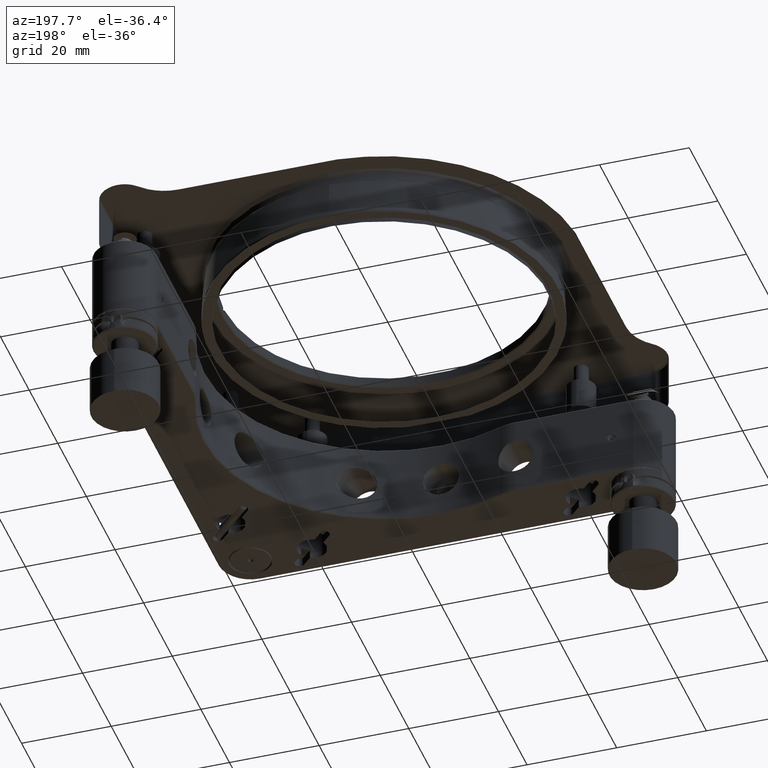
[diagram: clean part render]
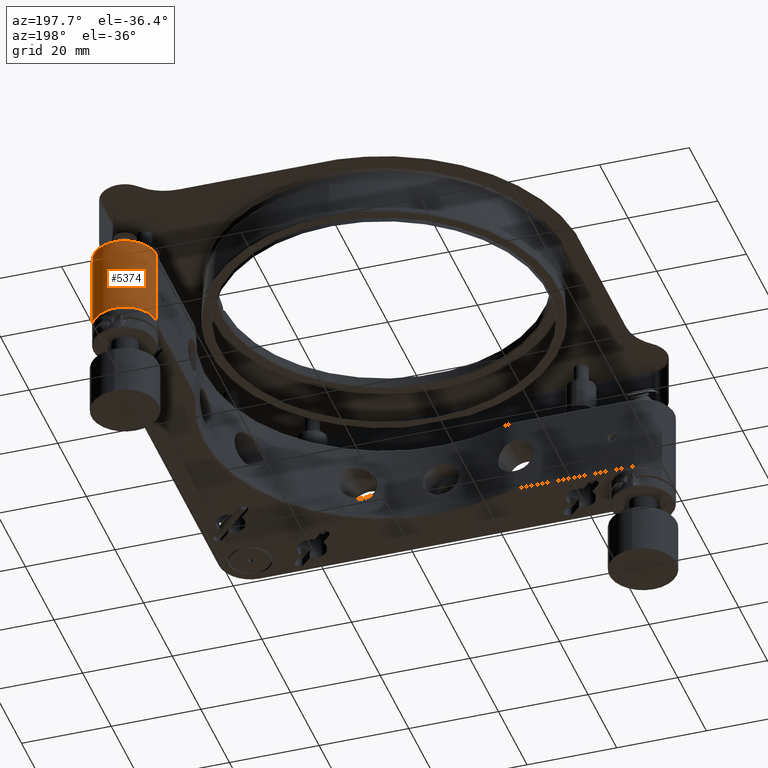
[diagram: same view with one face highlighted and labeled with its STEP entity id]
A machine part, auxiliary view. The second image highlights one B-rep face of the part: STEP entity #5374.
In plain terms, the highlighted cylindrical surface (edge-blend (fillet) strip) has radius 7 mm, axis along (0, 0, 1).
Its self-contained STEP definition (entity closure, byte-faithful):
#146 = CIRCLE ( 'NONE', #3163, 6.999999999972090770 ) ;
#2188 = DIRECTION ( 'NONE',  ( 0.000000000000000000, 0.000000000000000000, -1.000000000000000000 ) ) ;
#2988 = VECTOR ( 'NONE', #6459, 1000.000000000000000 ) ;
#3163 = AXIS2_PLACEMENT_3D ( 'NONE', #10404, #10323, #11689 ) ;
#3243 = CARTESIAN_POINT ( 'NONE',  ( 43.80000000000001137, 43.80000000000000426, 9.000000000000001776 ) ) ;
#3410 = DIRECTION ( 'NONE',  ( 0.000000000000000000, 0.000000000000000000, 1.000000000000000000 ) ) ;
#3658 = AXIS2_PLACEMENT_3D ( 'NONE', #3243, #3410, #10923 ) ;
#4374 = ORIENTED_EDGE ( 'NONE', *, *, #7971, .T. ) ;
#5374 = ADVANCED_FACE ( 'NONE', ( #11008 ), #12288, .T. ) ;
#5803 = CARTESIAN_POINT ( 'NONE',  ( 43.80000000000001137, 43.80000000000000426, -8.750000000000014211 ) ) ;
#6018 = VERTEX_POINT ( 'NONE', #13454 ) ;
#6459 = DIRECTION ( 'NONE',  ( -0.000000000000000000, -0.000000000000000000, 1.000000000000000000 ) ) ;
#7033 = CARTESIAN_POINT ( 'NONE',  ( 36.80000000000698179, 43.80000000000000426, 8.750000000005115908 ) ) ;
#7166 = VERTEX_POINT ( 'NONE', #7033 ) ;
#7804 = EDGE_CURVE ( 'NONE', #6018, #7166, #146, .T. ) ;
#7971 = EDGE_CURVE ( 'NONE', #6018, #10408, #11244, .T. ) ;
#7996 = CARTESIAN_POINT ( 'NONE',  ( 36.80000000000000426, 43.80000000000000426, -9.000000000000001776 ) ) ;
#8281 = VERTEX_POINT ( 'NONE', #11173 ) ;
#9198 = CIRCLE ( 'NONE', #10568, 6.999999999999999112 ) ;
#9737 = DIRECTION ( 'NONE',  ( 0.000000000000000000, 0.000000000000000000, 1.000000000000000000 ) ) ;
#10119 = EDGE_LOOP ( 'NONE', ( #16225, #4374, #12991, #11634 ) ) ;
#10323 = DIRECTION ( 'NONE',  ( -0.000000000000000000, -0.000000000000000000, 1.000000000000000000 ) ) ;
#10404 = CARTESIAN_POINT ( 'NONE',  ( 43.80000000000001137, 43.80000000000000426, 8.750000000020463631 ) ) ;
#10408 = VERTEX_POINT ( 'NONE', #13930 ) ;
#10568 = AXIS2_PLACEMENT_3D ( 'NONE', #5803, #9737, #13663 ) ;
#10923 = DIRECTION ( 'NONE',  ( 1.000000000000000000, 0.000000000000000000, 0.000000000000000000 ) ) ;
#11008 = FACE_OUTER_BOUND ( 'NONE', #10119, .T. ) ;
#11173 = CARTESIAN_POINT ( 'NONE',  ( 36.80000000000000426, 43.80000000000000426, -8.750000000000014211 ) ) ;
#11244 = LINE ( 'NONE', #12691, #14065 ) ;
#11634 = ORIENTED_EDGE ( 'NONE', *, *, #16261, .T. ) ;
#11672 = EDGE_CURVE ( 'NONE', #10408, #8281, #9198, .T. ) ;
#11689 = DIRECTION ( 'NONE',  ( -1.000000000000000000, 0.000000000000000000, 0.000000000000000000 ) ) ;
#11845 = LINE ( 'NONE', #7996, #2988 ) ;
#12288 = CYLINDRICAL_SURFACE ( 'NONE', #3658, 6.999999999999999112 ) ;
#12691 = CARTESIAN_POINT ( 'NONE',  ( 50.79999999999998295, 43.80000000000000426, 9.000000000000001776 ) ) ;
#12991 = ORIENTED_EDGE ( 'NONE', *, *, #11672, .T. ) ;
#13454 = CARTESIAN_POINT ( 'NONE',  ( 50.80000000000249827, 43.80000000000000426, 8.749999999972715159 ) ) ;
#13663 = DIRECTION ( 'NONE',  ( 1.000000000000000000, 0.000000000000000000, 0.000000000000000000 ) ) ;
#13930 = CARTESIAN_POINT ( 'NONE',  ( 50.80000000000946869, 43.80000000000000426, -8.749999999990915711 ) ) ;
#14065 = VECTOR ( 'NONE', #2188, 1000.000000000000000 ) ;
#16225 = ORIENTED_EDGE ( 'NONE', *, *, #7804, .F. ) ;
#16261 = EDGE_CURVE ( 'NONE', #8281, #7166, #11845, .T. ) ;